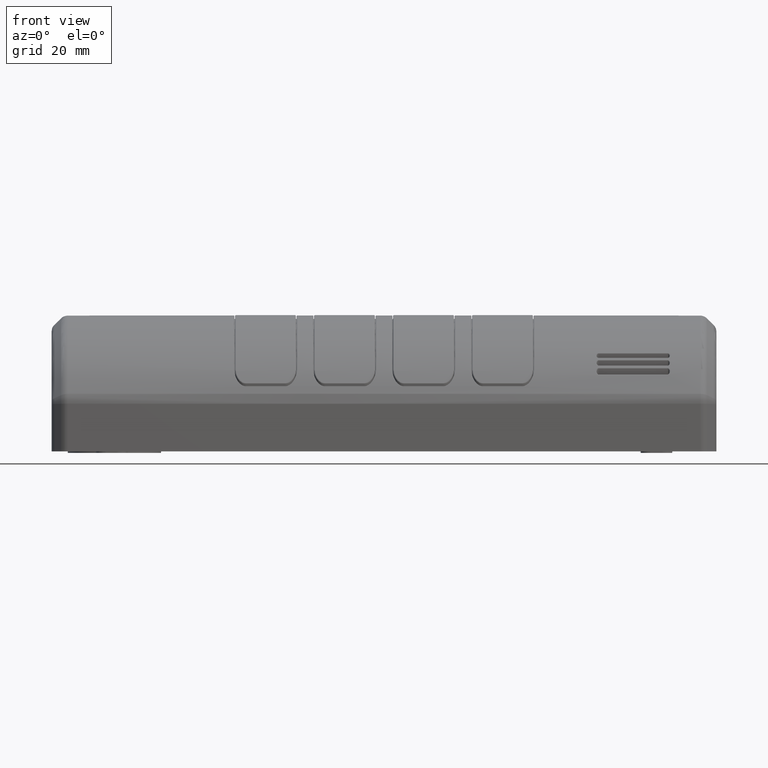
[diagram: clean part render]
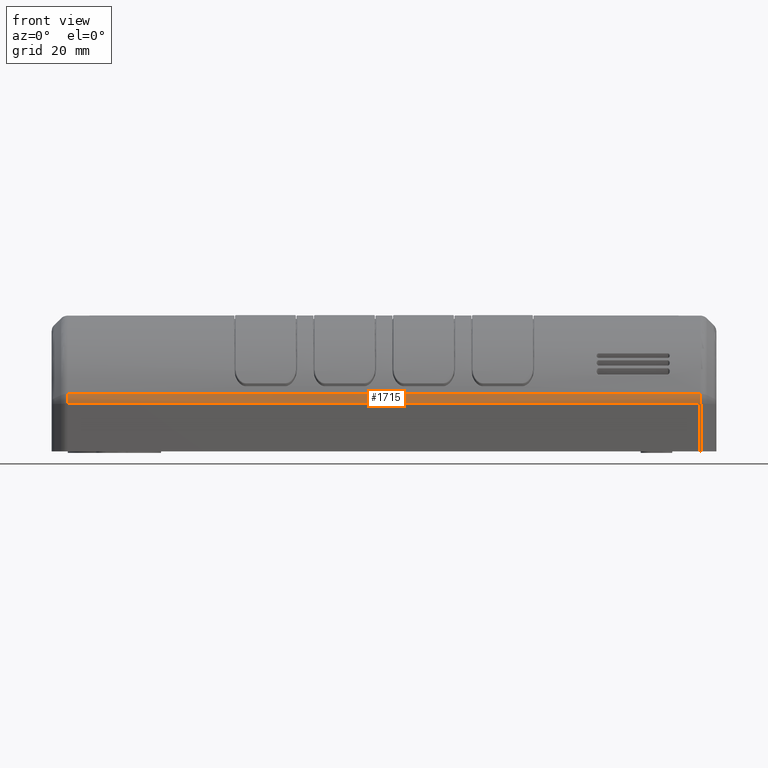
[diagram: same view with one face highlighted and labeled with its STEP entity id]
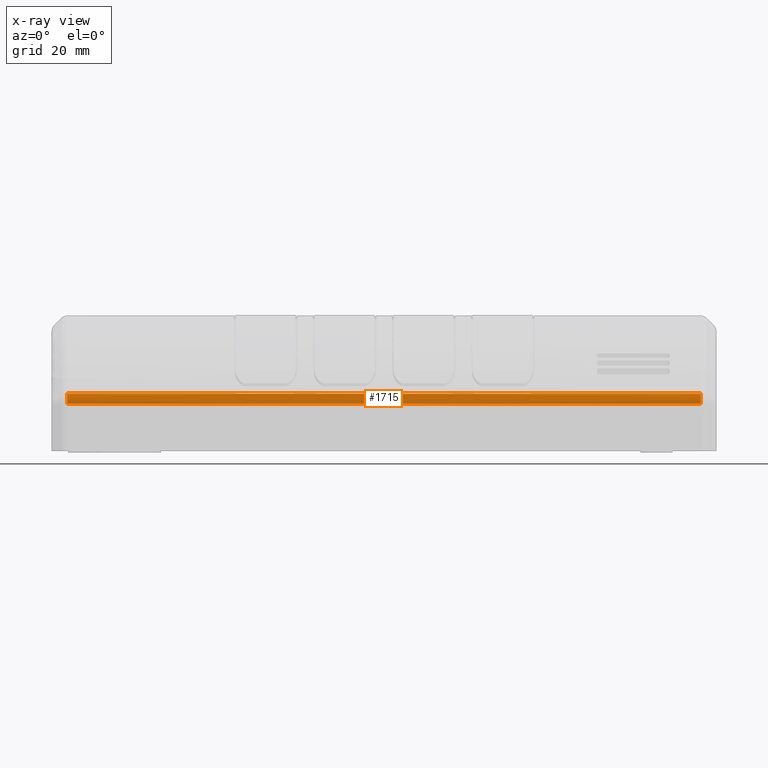
[diagram: x-ray of the same camera — body ghosted, the highlighted face saturated]
A machine part, front view. The second image highlights one B-rep face of the part: STEP entity #1715.
The next image is the same camera in x-ray: the body ghosted, the highlighted face saturated — about 0% of this face is hidden behind the body in this view.
In plain terms, the highlighted cylindrical surface (edge-blend (fillet) strip) has radius 7.5 mm, axis along (-1, 0, 0).
Its self-contained STEP definition (entity closure, byte-faithful):
#723=CYLINDRICAL_SURFACE('',#14530,7.5);
#1038=B_SPLINE_CURVE_WITH_KNOTS('',3,(#19441,#19442,#19443,#19444),.UNSPECIFIED.,
 .F.,.F.,(4,4),(0.,1.),.UNSPECIFIED.);
#1039=B_SPLINE_CURVE_WITH_KNOTS('',3,(#19446,#19447,#19448,#19449),.UNSPECIFIED.,
 .F.,.F.,(4,4),(0.,1.),.UNSPECIFIED.);
#1045=B_SPLINE_CURVE_WITH_KNOTS('',3,(#19476,#19477,#19478,#19479),.UNSPECIFIED.,
 .F.,.F.,(4,4),(0.,1.),.UNSPECIFIED.);
#1046=B_SPLINE_CURVE_WITH_KNOTS('',3,(#19481,#19482,#19483,#19484),.UNSPECIFIED.,
 .F.,.F.,(4,4),(0.,1.),.UNSPECIFIED.);
#1047=B_SPLINE_CURVE_WITH_KNOTS('',3,(#19486,#19487,#19488,#19489),.UNSPECIFIED.,
 .F.,.F.,(4,4),(0.,1.),.UNSPECIFIED.);
#1048=B_SPLINE_CURVE_WITH_KNOTS('',3,(#19491,#19492,#19493,#19494),.UNSPECIFIED.,
 .F.,.F.,(4,4),(0.,1.),.UNSPECIFIED.);
#1715=ADVANCED_FACE('',(#2950),#723,.T.);
#2950=FACE_OUTER_BOUND('',#3759,.T.);
#3759=EDGE_LOOP('',(#4766,#4767,#4768,#4769,#4770,#4771));
#4766=ORIENTED_EDGE('',*,*,#10416,.T.);
#4767=ORIENTED_EDGE('',*,*,#10415,.T.);
#4768=ORIENTED_EDGE('',*,*,#10422,.T.);
#4769=ORIENTED_EDGE('',*,*,#10423,.F.);
#4770=ORIENTED_EDGE('',*,*,#10424,.F.);
#4771=ORIENTED_EDGE('',*,*,#10425,.T.);
#9027=VERTEX_POINT('',#19440);
#9028=VERTEX_POINT('',#19445);
#9029=VERTEX_POINT('',#19450);
#9033=VERTEX_POINT('',#19480);
#9034=VERTEX_POINT('',#19485);
#9035=VERTEX_POINT('',#19490);
#10415=EDGE_CURVE('',#9028,#9027,#1038,.T.);
#10416=EDGE_CURVE('',#9029,#9028,#1039,.T.);
#10422=EDGE_CURVE('',#9027,#9033,#1045,.T.);
#10423=EDGE_CURVE('',#9034,#9033,#1046,.T.);
#10424=EDGE_CURVE('',#9035,#9034,#1047,.T.);
#10425=EDGE_CURVE('',#9035,#9029,#1048,.T.);
#14530=AXIS2_PLACEMENT_3D('',#19495,#15770,#15771);
#15770=DIRECTION('',(-1.,0.,0.));
#15771=DIRECTION('',(0.,-0.965095570594262,0.261897956500878));
#19440=CARTESIAN_POINT('',(155.257359312883,-44.4511970019319,16.9656616551899));
#19441=CARTESIAN_POINT('',(24.6000000000025,-44.4511970019319,16.9656616551899));
#19442=CARTESIAN_POINT('',(68.152453104296,-44.4511970019319,16.9656616551899));
#19443=CARTESIAN_POINT('',(111.70490620859,-44.4511970019319,16.9656616551899));
#19444=CARTESIAN_POINT('',(155.257359312883,-44.4511970019319,16.9656616551899));
#19445=CARTESIAN_POINT('',(24.6000000000025,-44.4511970019319,16.9656616551899));
#19446=CARTESIAN_POINT('',(-53.8573593128783,-44.4511970019319,16.9656616551899));
#19447=CARTESIAN_POINT('',(-27.7049062085847,-44.4511970019319,16.9656616551899));
#19448=CARTESIAN_POINT('',(-1.55245310429111,-44.4511970019319,16.9656616551899));
#19449=CARTESIAN_POINT('',(24.6000000000025,-44.4511970019319,16.9656616551899));
#19450=CARTESIAN_POINT('',(-53.8573593128782,-44.4511970019319,16.9656616551899));
#19476=CARTESIAN_POINT('',(155.257359312883,-44.4511970019319,16.9656616551899));
#19477=CARTESIAN_POINT('',(155.257359312883,-44.4110483252941,18.1153693283653));
#19478=CARTESIAN_POINT('',(155.257359312883,-44.1018330799816,19.2548293974638));
#19479=CARTESIAN_POINT('',(155.257359312883,-43.5552818100088,20.2671146138356));
#19480=CARTESIAN_POINT('',(155.257359312883,-43.5552818100088,20.2671146138356));
#19481=CARTESIAN_POINT('',(24.6000000000025,-43.5552818100088,20.2671146138356));
#19482=CARTESIAN_POINT('',(68.152453104296,-43.5552818100088,20.2671146138356));
#19483=CARTESIAN_POINT('',(111.70490620859,-43.5552818100088,20.2671146138356));
#19484=CARTESIAN_POINT('',(155.257359312883,-43.5552818100088,20.2671146138356));
#19485=CARTESIAN_POINT('',(24.6000000000025,-43.5552818100088,20.2671146138356));
#19486=CARTESIAN_POINT('',(-53.8573593128783,-43.5552818100088,20.2671146138356));
#19487=CARTESIAN_POINT('',(-27.7049062085847,-43.5552818100088,20.2671146138356));
#19488=CARTESIAN_POINT('',(-1.55245310429111,-43.5552818100088,20.2671146138356));
#19489=CARTESIAN_POINT('',(24.6000000000025,-43.5552818100088,20.2671146138356));
#19490=CARTESIAN_POINT('',(-53.8573593128782,-43.5552818100088,20.2671146138356));
#19491=CARTESIAN_POINT('',(-53.8573593128783,-43.5552818100088,20.2671146138356));
#19492=CARTESIAN_POINT('',(-53.8573593128783,-44.1018330799816,19.2548293974638));
#19493=CARTESIAN_POINT('',(-53.8573593128783,-44.411048325294,18.1153693283653));
#19494=CARTESIAN_POINT('',(-53.8573593128783,-44.4511970019319,16.9656616551899));
#19495=CARTESIAN_POINT('',(131.900000000002,-36.9557657992887,16.7039154299212));